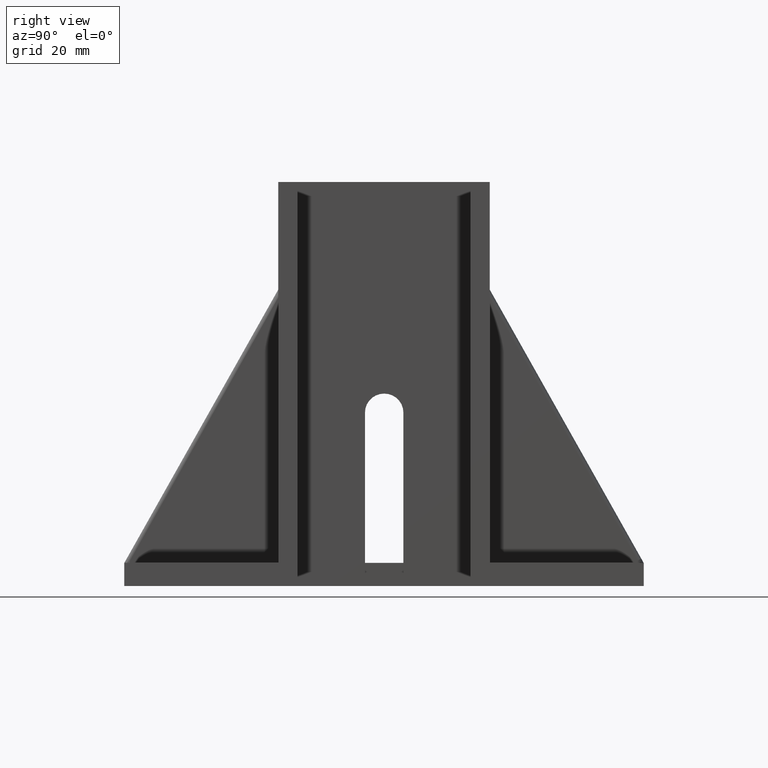
[diagram: clean part render]
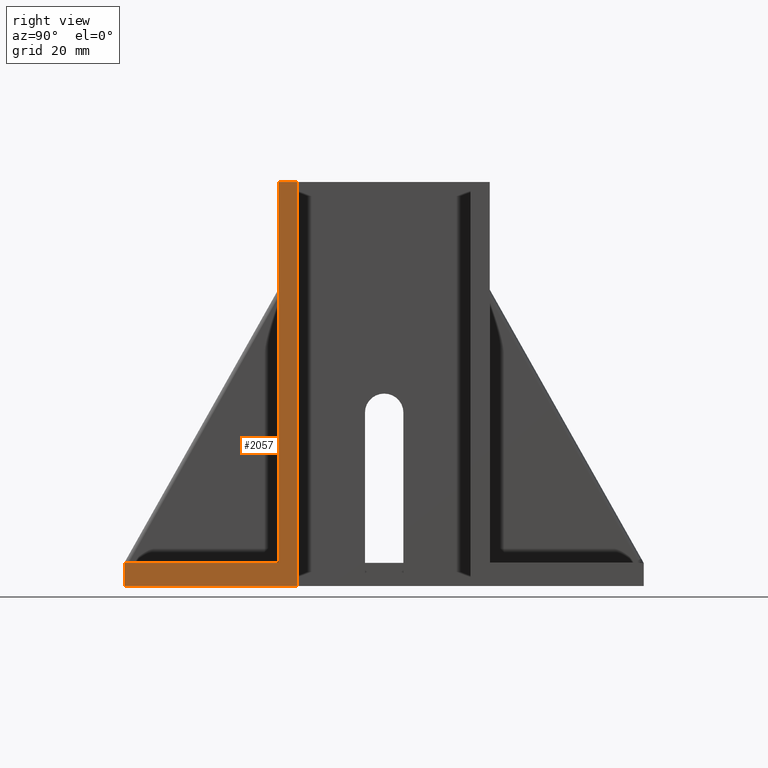
[diagram: same view with one face highlighted and labeled with its STEP entity id]
A machine part, right view. The second image highlights one B-rep face of the part: STEP entity #2057.
In plain terms, the highlighted planar face has unit normal (-1, 0, -0).
Its self-contained STEP definition (entity closure, byte-faithful):
#171=PLANE('',#2201);
#225=FACE_OUTER_BOUND('',#333,.T.);
#333=EDGE_LOOP('',(#1427,#1428,#1429,#1430,#1431,#1432));
#473=LINE('',#2866,#640);
#474=LINE('',#2868,#641);
#475=LINE('',#2870,#642);
#476=LINE('',#2872,#643);
#477=LINE('',#2874,#644);
#478=LINE('',#2875,#645);
#640=VECTOR('',#2411,10.);
#641=VECTOR('',#2412,10.);
#642=VECTOR('',#2413,10.);
#643=VECTOR('',#2414,10.);
#644=VECTOR('',#2415,10.);
#645=VECTOR('',#2416,10.);
#855=VERTEX_POINT('',#2864);
#856=VERTEX_POINT('',#2865);
#857=VERTEX_POINT('',#2867);
#858=VERTEX_POINT('',#2869);
#859=VERTEX_POINT('',#2871);
#860=VERTEX_POINT('',#2873);
#1083=EDGE_CURVE('',#855,#856,#473,.T.);
#1084=EDGE_CURVE('',#857,#855,#474,.T.);
#1085=EDGE_CURVE('',#858,#857,#475,.T.);
#1086=EDGE_CURVE('',#859,#858,#476,.T.);
#1087=EDGE_CURVE('',#860,#859,#477,.T.);
#1088=EDGE_CURVE('',#856,#860,#478,.T.);
#1427=ORIENTED_EDGE('',*,*,#1083,.F.);
#1428=ORIENTED_EDGE('',*,*,#1084,.F.);
#1429=ORIENTED_EDGE('',*,*,#1085,.F.);
#1430=ORIENTED_EDGE('',*,*,#1086,.F.);
#1431=ORIENTED_EDGE('',*,*,#1087,.F.);
#1432=ORIENTED_EDGE('',*,*,#1088,.F.);
#2057=ADVANCED_FACE('',(#225),#171,.F.);
#2201=AXIS2_PLACEMENT_3D('',#2863,#2409,#2410);
#2409=DIRECTION('center_axis',(-1.,0.,-3.38353683695286E-16));
#2410=DIRECTION('ref_axis',(3.38353683695286E-16,0.,-1.));
#2411=DIRECTION('',(-3.38353683695286E-16,0.,1.));
#2412=DIRECTION('',(0.,1.,0.));
#2413=DIRECTION('',(-3.38353683695286E-16,0.,1.));
#2414=DIRECTION('',(0.,-1.,0.));
#2415=DIRECTION('',(3.38353683695286E-16,0.,-1.));
#2416=DIRECTION('',(0.,1.,0.));
#2863=CARTESIAN_POINT('Origin',(15.4998649997299,-94.9998099996202,104.999789912801));
#2864=CARTESIAN_POINT('',(15.49986499973,-94.9998099996202,5.99998799997638));
#2865=CARTESIAN_POINT('',(15.4998649997299,-94.9998099996202,104.999789912801));
#2866=CARTESIAN_POINT('',(15.4998649997299,-94.9998099996202,52.4998733028569));
#2867=CARTESIAN_POINT('',(15.49986499973,-134.99972999946,5.99998799997638));
#2868=CARTESIAN_POINT('',(15.49986499973,-121.749758862101,5.99998799997638));
#2869=CARTESIAN_POINT('',(15.49986499973,-134.99972999946,0.));
#2870=CARTESIAN_POINT('',(15.4998649997299,-134.99972999946,52.4998949564005));
#2871=CARTESIAN_POINT('',(15.49986499973,-89.9998199996403,0.));
#2872=CARTESIAN_POINT('',(15.49986499973,-121.749758862101,0.));
#2873=CARTESIAN_POINT('',(15.4998649997299,-89.9998199996403,104.999789912801));
#2874=CARTESIAN_POINT('',(15.4998649997299,-89.9998199996403,52.4998752712498));
#2875=CARTESIAN_POINT('',(15.4998649997299,-97.7498068618519,104.999789912801));